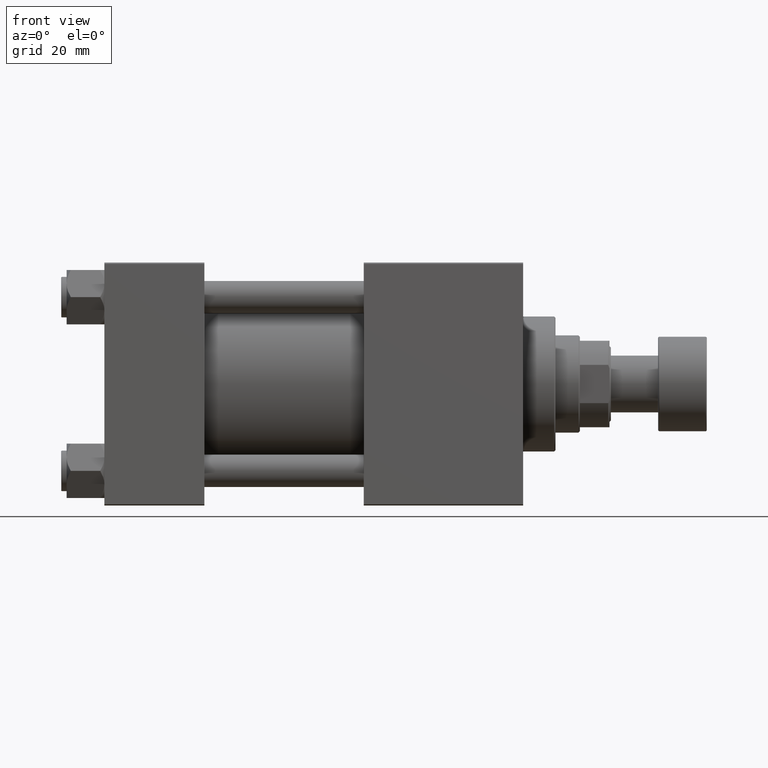
[diagram: clean part render]
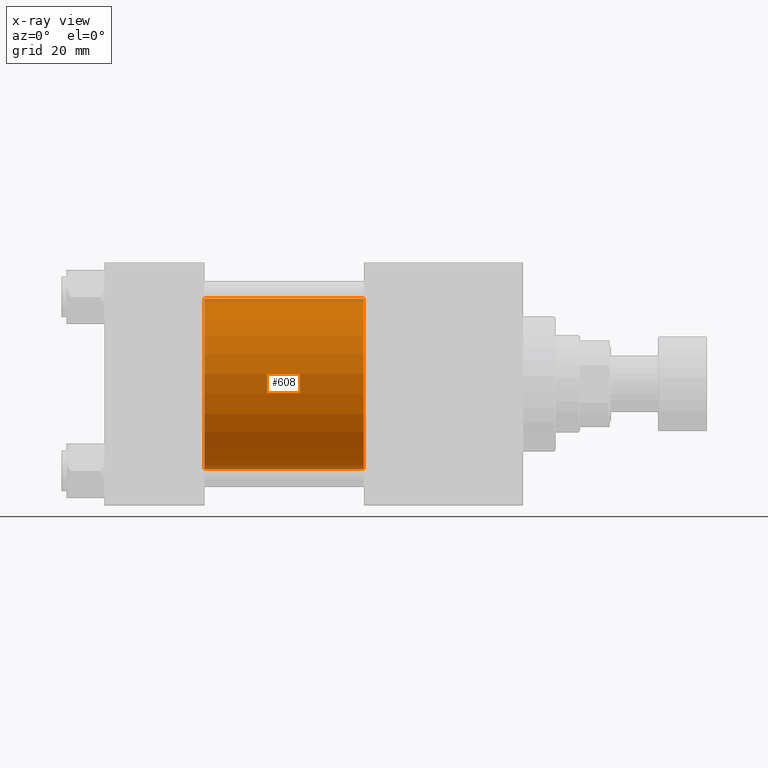
[diagram: x-ray — body ghosted, one internal face saturated and labeled with its STEP entity id]
A machine part, front view, then the same camera in x-ray: the body is ghosted and one INTERNAL B-rep face — a face not visible from any outside direction — is saturated and labeled: STEP entity #608.
In plain terms, the highlighted cylindrical surface (partial cylindrical patch) has radius 31.5 mm, axis along (-1, -0, -0).
Its self-contained STEP definition (entity closure, byte-faithful):
#226 = CARTESIAN_POINT ( 'NONE',  ( 96.00000000000000000, -2.602085213965210642E-15, 31.50000000000000000 ) ) ;
#608 = ADVANCED_FACE ( 'NONE', ( #21028 ), #32058, .F. ) ;
#787 = ORIENTED_EDGE ( 'NONE', *, *, #30907, .T. ) ;
#1611 = CARTESIAN_POINT ( 'NONE',  ( 37.00000000000000000, -2.602085213965210642E-15, 0.000000000000000000 ) ) ;
#4238 = EDGE_LOOP ( 'NONE', ( #787, #14504, #28435, #25349 ) ) ;
#6907 = AXIS2_PLACEMENT_3D ( 'NONE', #9003, #43318, #16696 ) ;
#6965 = AXIS2_PLACEMENT_3D ( 'NONE', #13026, #28629, #24785 ) ;
#7214 = EDGE_CURVE ( 'NONE', #13462, #12851, #42401, .T. ) ;
#7325 = CARTESIAN_POINT ( 'NONE',  ( 96.00000000000000000, 1.255552203348951850E-15, -31.50000000000000000 ) ) ;
#9003 = CARTESIAN_POINT ( 'NONE',  ( 96.00000000000000000, -2.602085213965210642E-15, 0.000000000000000000 ) ) ;
#12561 = VERTEX_POINT ( 'NONE', #226 ) ;
#12810 = LINE ( 'NONE', #32778, #30381 ) ;
#12851 = VERTEX_POINT ( 'NONE', #25515 ) ;
#13026 = CARTESIAN_POINT ( 'NONE',  ( 96.00000000000000000, -2.602085213965210642E-15, 0.000000000000000000 ) ) ;
#13462 = VERTEX_POINT ( 'NONE', #20548 ) ;
#14504 = ORIENTED_EDGE ( 'NONE', *, *, #7214, .T. ) ;
#16298 = CARTESIAN_POINT ( 'NONE',  ( 37.00000000000000000, -2.602085213965210642E-15, 31.50000000000000000 ) ) ;
#16696 = DIRECTION ( 'NONE',  ( 0.000000000000000000, 0.000000000000000000, 1.000000000000000000 ) ) ;
#17070 = CIRCLE ( 'NONE', #24849, 31.50000000000000000 ) ;
#17495 = VECTOR ( 'NONE', #50354, 1000.000000000000000 ) ;
#18420 = CIRCLE ( 'NONE', #6965, 31.50000000000000000 ) ;
#20548 = CARTESIAN_POINT ( 'NONE',  ( 96.00000000000000000, 1.255552203348951850E-15, -31.50000000000000000 ) ) ;
#21028 = FACE_OUTER_BOUND ( 'NONE', #4238, .T. ) ;
#24785 = DIRECTION ( 'NONE',  ( 0.000000000000000000, 0.000000000000000000, -1.000000000000000000 ) ) ;
#24849 = AXIS2_PLACEMENT_3D ( 'NONE', #1611, #28008, #43641 ) ;
#25116 = EDGE_CURVE ( 'NONE', #12561, #48519, #12810, .T. ) ;
#25349 = ORIENTED_EDGE ( 'NONE', *, *, #25116, .F. ) ;
#25515 = CARTESIAN_POINT ( 'NONE',  ( 37.00000000000000000, 1.255552203348951850E-15, -31.50000000000000000 ) ) ;
#26660 = EDGE_CURVE ( 'NONE', #48519, #12851, #17070, .T. ) ;
#28008 = DIRECTION ( 'NONE',  ( 1.000000000000000000, 0.000000000000000000, 0.000000000000000000 ) ) ;
#28435 = ORIENTED_EDGE ( 'NONE', *, *, #26660, .F. ) ;
#28629 = DIRECTION ( 'NONE',  ( 1.000000000000000000, 0.000000000000000000, 0.000000000000000000 ) ) ;
#28923 = DIRECTION ( 'NONE',  ( -1.000000000000000000, -0.000000000000000000, -0.000000000000000000 ) ) ;
#30381 = VECTOR ( 'NONE', #28923, 1000.000000000000000 ) ;
#30907 = EDGE_CURVE ( 'NONE', #12561, #13462, #18420, .T. ) ;
#32058 = CYLINDRICAL_SURFACE ( 'NONE', #6907, 31.50000000000000000 ) ;
#32778 = CARTESIAN_POINT ( 'NONE',  ( 96.00000000000000000, -2.602085213965210642E-15, 31.50000000000000000 ) ) ;
#42401 = LINE ( 'NONE', #7325, #17495 ) ;
#43318 = DIRECTION ( 'NONE',  ( -1.000000000000000000, -0.000000000000000000, -0.000000000000000000 ) ) ;
#43641 = DIRECTION ( 'NONE',  ( 0.000000000000000000, 0.000000000000000000, -1.000000000000000000 ) ) ;
#48519 = VERTEX_POINT ( 'NONE', #16298 ) ;
#50354 = DIRECTION ( 'NONE',  ( -1.000000000000000000, -0.000000000000000000, -0.000000000000000000 ) ) ;